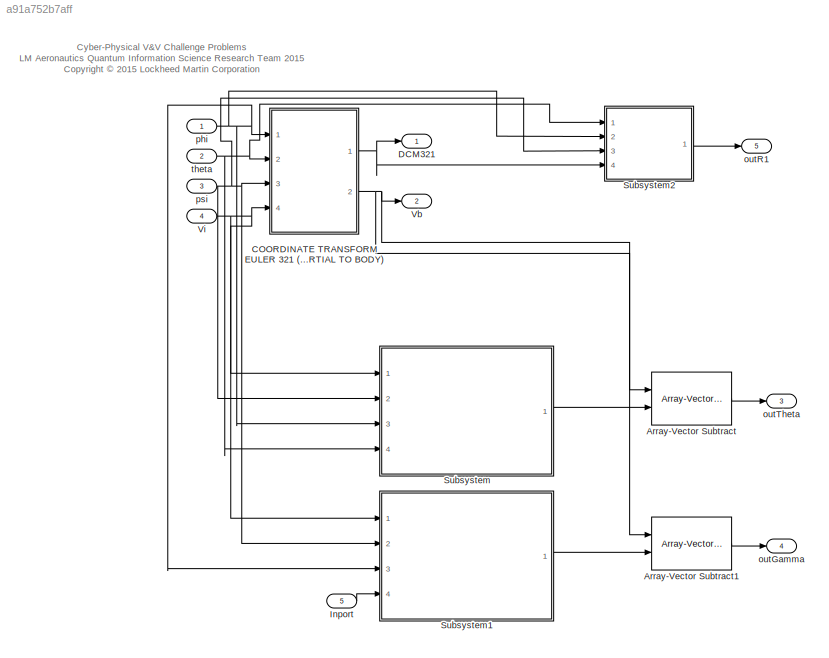
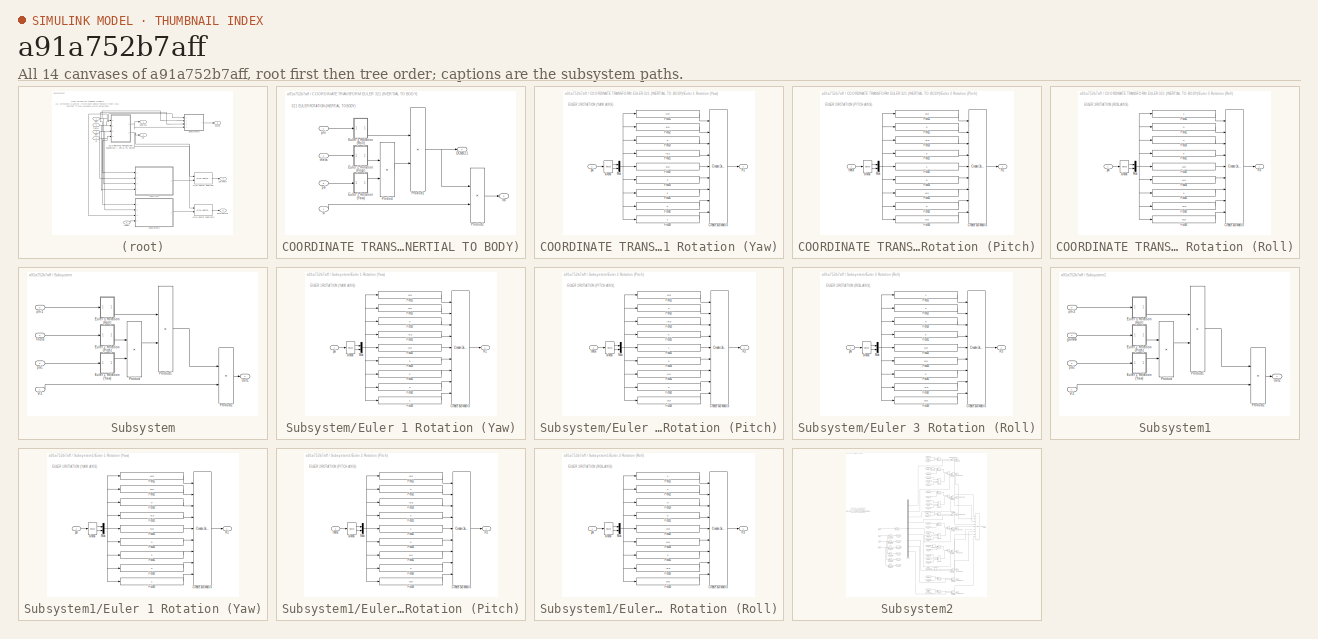
[diagram: thumbnail index - all 14 canvases of the model, root first then tree order]
MODEL slx_a91a752b7aff
KIND model
CONFIG AbsTol = auto
CONFIG EnableMultiTasking = on
CONFIG FixedStep = 0.01
CONFIG MaxStep = auto
CONFIG MinStep = auto
CONFIG RelTol = 1e-3
CONFIG SampleTimeConstraint = Unconstrained
CONFIG SolverName = ode3
CONFIG StartTime = 0.0
CONFIG StopTime = 10.0
WORKSPACE source: mxarray member
WORKSPACE X = [2.82349418676 1.62907668459 2.19953938585 0.797466441882 0.483707410954 -2.31662366019 2.91825739244 3.13458055029 0.41915422695 -3.04934593888 -1.84933917806 2.61583239987 ... (7007 elements, 1x7007)]
WORKSPACE cs: handle (value not decoded)
WORKSPACE curPath = '<userpath>/Documents/Projects/QRA-LocalSearch/Local Search Algorithms/Problems'
WORKSPACE d = 4004
WORKSPACE hws = []
WORKSPACE i = 6
WORKSPACE model_cs: handle (value not decoded)
WORKSPACE modelpath = '<userpath>/Documents/Projects/QRA-LocalSearch/Simulink Models/9_euler/'
WORKSPACE req = 'R1'
WORKSPACE t = [0 0.01 0.02 0.03 0.04 0.05 0.06 0.07 0.08 0.09 0.1 0.11 ... (1001 elements, 1x1001)]
WORKSPACE var: object (value not decoded)
BLOCK [Reference] Array-Vector Subtract  REF=dspmtrx3/Array-Vector
Subtract
  Ports = [2, 1]
  SourceBlock = dspmtrx3/Array-Vector\nSubtract
  SourceProductBaseCode = DS
  SourceType = Array-Vector Subtract
BLOCK [Reference] Array-Vector Subtract1  REF=dspmtrx3/Array-Vector
Subtract
  Ports = [2, 1]
  SourceBlock = dspmtrx3/Array-Vector\nSubtract
  SourceProductBaseCode = DS
  SourceType = Array-Vector Subtract
BLOCK [SubSystem] COORDINATE TRANSFORM EULER 321 (INERTIAL TO BODY)
  Ports = [4, 2]
  RequestExecContextInheritance = off
BLOCK [Outport] COORDINATE TRANSFORM EULER 321 (INERTIAL TO BODY)/DCM321
  VectorParamsAs1DForOutWhenUnconnected = off
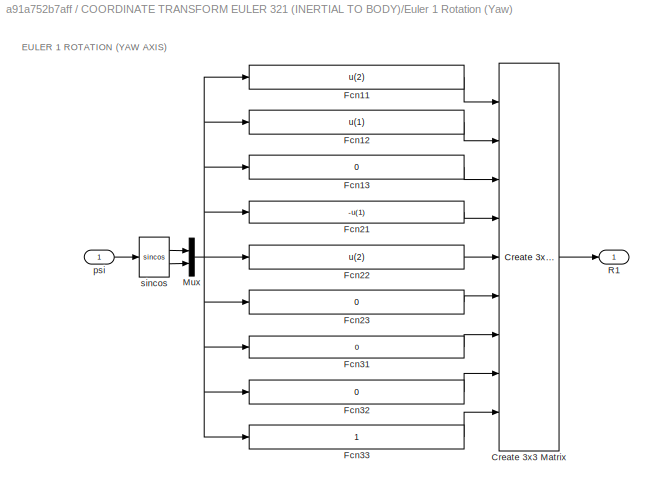
BLOCK [SubSystem] COORDINATE TRANSFORM EULER 321 (INERTIAL TO BODY)/Euler 1 Rotation (Yaw)
  Ports = [1, 1]
  RequestExecContextInheritance = off
BLOCK [Reference] COORDINATE TRANSFORM EULER 321 (INERTIAL TO BODY)/Euler 1 Rotation (Yaw)/Create 3x3 Matrix  REF=sharedutil/Create 3x3 Matrix
  Ports = [9, 1]
  SourceBlock = sharedutil/Create 3x3 Matrix
  SourceProductBaseCode = AE,PW,DR,MT,UV,VE
  SourceType = Create 3x3 Matrix
BLOCK [Fcn] COORDINATE TRANSFORM EULER 321 (INERTIAL TO BODY)/Euler 1 Rotation (Yaw)/Fcn11
  Expr = u(2)
BLOCK [Fcn] COORDINATE TRANSFORM EULER 321 (INERTIAL TO BODY)/Euler 1 Rotation (Yaw)/Fcn12
  Expr = u(1)
BLOCK [Fcn] COORDINATE TRANSFORM EULER 321 (INERTIAL TO BODY)/Euler 1 Rotation (Yaw)/Fcn13
  Expr = 0
BLOCK [Fcn] COORDINATE TRANSFORM EULER 321 (INERTIAL TO BODY)/Euler 1 Rotation (Yaw)/Fcn21
  Expr = -u(1)
BLOCK [Fcn] COORDINATE TRANSFORM EULER 321 (INERTIAL TO BODY)/Euler 1 Rotation (Yaw)/Fcn22
  Expr = u(2)
BLOCK [Fcn] COORDINATE TRANSFORM EULER 321 (INERTIAL TO BODY)/Euler 1 Rotation (Yaw)/Fcn23
  Expr = 0
BLOCK [Fcn] COORDINATE TRANSFORM EULER 321 (INERTIAL TO BODY)/Euler 1 Rotation (Yaw)/Fcn31
  Expr = 0
BLOCK [Fcn] COORDINATE TRANSFORM EULER 321 (INERTIAL TO BODY)/Euler 1 Rotation (Yaw)/Fcn32
  Expr = 0
BLOCK [Fcn] COORDINATE TRANSFORM EULER 321 (INERTIAL TO BODY)/Euler 1 Rotation (Yaw)/Fcn33
  Expr = 1
BLOCK [Mux] COORDINATE TRANSFORM EULER 321 (INERTIAL TO BODY)/Euler 1 Rotation (Yaw)/Mux
  DisplayOption = bar
  Inputs = 2
  Ports = [2, 1]
BLOCK [Outport] COORDINATE TRANSFORM EULER 321 (INERTIAL TO BODY)/Euler 1 Rotation (Yaw)/R1
  PortDimensions = [3,3]
  VectorParamsAs1DForOutWhenUnconnected = off
BLOCK [Inport] COORDINATE TRANSFORM EULER 321 (INERTIAL TO BODY)/Euler 1 Rotation (Yaw)/psi
BLOCK [Trigonometry] COORDINATE TRANSFORM EULER 321 (INERTIAL TO BODY)/Euler 1 Rotation (Yaw)/sincos
  Operator = sincos
  Ports = [1, 2]
BLOCK [SubSystem] COORDINATE TRANSFORM EULER 321 (INERTIAL TO BODY)/Euler 2 Rotation (Pitch)
  Ports = [1, 1]
  RequestExecContextInheritance = off
BLOCK [Reference] COORDINATE TRANSFORM EULER 321 (INERTIAL TO BODY)/Euler 2 Rotation (Pitch)/Create 3x3 Matrix  REF=sharedutil/Create 3x3 Matrix
  Ports = [9, 1]
  SourceBlock = sharedutil/Create 3x3 Matrix
  SourceProductBaseCode = AE,PW,DR,MT,UV,VE
  SourceType = Create 3x3 Matrix
BLOCK [Fcn] COORDINATE TRANSFORM EULER 321 (INERTIAL TO BODY)/Euler 2 Rotation (Pitch)/Fcn11
  Expr = u(2)
BLOCK [Fcn] COORDINATE TRANSFORM EULER 321 (INERTIAL TO BODY)/Euler 2 Rotation (Pitch)/Fcn12
  Expr = 0
BLOCK [Fcn] COORDINATE TRANSFORM EULER 321 (INERTIAL TO BODY)/Euler 2 Rotation (Pitch)/Fcn13
  Expr = -u(1)
BLOCK [Fcn] COORDINATE TRANSFORM EULER 321 (INERTIAL TO BODY)/Euler 2 Rotation (Pitch)/Fcn21
  Expr = 0
BLOCK [Fcn] COORDINATE TRANSFORM EULER 321 (INERTIAL TO BODY)/Euler 2 Rotation (Pitch)/Fcn22
  Expr = 1
BLOCK [Fcn] COORDINATE TRANSFORM EULER 321 (INERTIAL TO BODY)/Euler 2 Rotation (Pitch)/Fcn23
  Expr = 0
BLOCK [Fcn] COORDINATE TRANSFORM EULER 321 (INERTIAL TO BODY)/Euler 2 Rotation (Pitch)/Fcn31
  Expr = u(1)
BLOCK [Fcn] COORDINATE TRANSFORM EULER 321 (INERTIAL TO BODY)/Euler 2 Rotation (Pitch)/Fcn32
  Expr = 0
BLOCK [Fcn] COORDINATE TRANSFORM EULER 321 (INERTIAL TO BODY)/Euler 2 Rotation (Pitch)/Fcn33
  Expr = u(2)
BLOCK [Mux] COORDINATE TRANSFORM EULER 321 (INERTIAL TO BODY)/Euler 2 Rotation (Pitch)/Mux
  DisplayOption = bar
  Inputs = 2
  Ports = [2, 1]
BLOCK [Outport] COORDINATE TRANSFORM EULER 321 (INERTIAL TO BODY)/Euler 2 Rotation (Pitch)/R2
  PortDimensions = [3,3]
  VectorParamsAs1DForOutWhenUnconnected = off
BLOCK [Trigonometry] COORDINATE TRANSFORM EULER 321 (INERTIAL TO BODY)/Euler 2 Rotation (Pitch)/sincos
  Operator = sincos
  Ports = [1, 2]
BLOCK [Inport] COORDINATE TRANSFORM EULER 321 (INERTIAL TO BODY)/Euler 2 Rotation (Pitch)/theta
BLOCK [SubSystem] COORDINATE TRANSFORM EULER 321 (INERTIAL TO BODY)/Euler 3 Rotation (Roll)
  Ports = [1, 1]
  RequestExecContextInheritance = off
BLOCK [Reference] COORDINATE TRANSFORM EULER 321 (INERTIAL TO BODY)/Euler 3 Rotation (Roll)/Create 3x3 Matrix  REF=sharedutil/Create 3x3 Matrix
  Ports = [9, 1]
  SourceBlock = sharedutil/Create 3x3 Matrix
  SourceProductBaseCode = AE,PW,DR,MT,UV,VE
  SourceType = Create 3x3 Matrix
BLOCK [Fcn] COORDINATE TRANSFORM EULER 321 (INERTIAL TO BODY)/Euler 3 Rotation (Roll)/Fcn11
  Expr = 1
BLOCK [Fcn] COORDINATE TRANSFORM EULER 321 (INERTIAL TO BODY)/Euler 3 Rotation (Roll)/Fcn12
  Expr = 0
BLOCK [Fcn] COORDINATE TRANSFORM EULER 321 (INERTIAL TO BODY)/Euler 3 Rotation (Roll)/Fcn13
  Expr = 0
BLOCK [Fcn] COORDINATE TRANSFORM EULER 321 (INERTIAL TO BODY)/Euler 3 Rotation (Roll)/Fcn21
  Expr = 0
BLOCK [Fcn] COORDINATE TRANSFORM EULER 321 (INERTIAL TO BODY)/Euler 3 Rotation (Roll)/Fcn22
  Expr = u(2)
BLOCK [Fcn] COORDINATE TRANSFORM EULER 321 (INERTIAL TO BODY)/Euler 3 Rotation (Roll)/Fcn23
  Expr = u(1)
BLOCK [Fcn] COORDINATE TRANSFORM EULER 321 (INERTIAL TO BODY)/Euler 3 Rotation (Roll)/Fcn31
  Expr = 0
BLOCK [Fcn] COORDINATE TRANSFORM EULER 321 (INERTIAL TO BODY)/Euler 3 Rotation (Roll)/Fcn32
  Expr = -u(1)
BLOCK [Fcn] COORDINATE TRANSFORM EULER 321 (INERTIAL TO BODY)/Euler 3 Rotation (Roll)/Fcn33
  Expr = u(2)
BLOCK [Mux] COORDINATE TRANSFORM EULER 321 (INERTIAL TO BODY)/Euler 3 Rotation (Roll)/Mux
  DisplayOption = bar
  Inputs = 2
  Ports = [2, 1]
BLOCK [Outport] COORDINATE TRANSFORM EULER 321 (INERTIAL TO BODY)/Euler 3 Rotation (Roll)/R3
  PortDimensions = [3,3]
  VectorParamsAs1DForOutWhenUnconnected = off
BLOCK [Inport] COORDINATE TRANSFORM EULER 321 (INERTIAL TO BODY)/Euler 3 Rotation (Roll)/phi
BLOCK [Trigonometry] COORDINATE TRANSFORM EULER 321 (INERTIAL TO BODY)/Euler 3 Rotation (Roll)/sincos
  Operator = sincos
  Ports = [1, 2]
BLOCK [Product] COORDINATE TRANSFORM EULER 321 (INERTIAL TO BODY)/Product
  Multiplication = Matrix(*)
  Ports = [2, 1]
  RndMeth = Zero
BLOCK [Product] COORDINATE TRANSFORM EULER 321 (INERTIAL TO BODY)/Product1
  Multiplication = Matrix(*)
  Ports = [2, 1]
  RndMeth = Zero
BLOCK [Product] COORDINATE TRANSFORM EULER 321 (INERTIAL TO BODY)/Product2
  Multiplication = Matrix(*)
  Ports = [2, 1]
  RndMeth = Zero
BLOCK [Outport] COORDINATE TRANSFORM EULER 321 (INERTIAL TO BODY)/Vb
  Port = 2
  VectorParamsAs1DForOutWhenUnconnected = off
BLOCK [Inport] COORDINATE TRANSFORM EULER 321 (INERTIAL TO BODY)/Vi
  Port = 4
BLOCK [Inport] COORDINATE TRANSFORM EULER 321 (INERTIAL TO BODY)/phi
BLOCK [Inport] COORDINATE TRANSFORM EULER 321 (INERTIAL TO BODY)/psi
  Port = 3
BLOCK [Inport] COORDINATE TRANSFORM EULER 321 (INERTIAL TO BODY)/theta
  Port = 2
BLOCK [Outport] DCM321
  VectorParamsAs1DForOutWhenUnconnected = off
BLOCK [Inport] Inport
  Port = 5
BLOCK [SubSystem] Subsystem
  Ports = [4, 1]
  RequestExecContextInheritance = off
BLOCK [SubSystem] Subsystem/Euler 1 Rotation (Yaw)
  Ports = [1, 1]
  RequestExecContextInheritance = off
BLOCK [Reference] Subsystem/Euler 1 Rotation (Yaw)/Create 3x3 Matrix  REF=sharedutil/Create 3x3 Matrix
  Ports = [9, 1]
  SourceBlock = sharedutil/Create 3x3 Matrix
  SourceProductBaseCode = AE,PW,DR,MT,UV,VE
  SourceType = Create 3x3 Matrix
BLOCK [Fcn] Subsystem/Euler 1 Rotation (Yaw)/Fcn11
  Expr = u(2)
BLOCK [Fcn] Subsystem/Euler 1 Rotation (Yaw)/Fcn12
  Expr = u(1)
BLOCK [Fcn] Subsystem/Euler 1 Rotation (Yaw)/Fcn13
  Expr = 0
BLOCK [Fcn] Subsystem/Euler 1 Rotation (Yaw)/Fcn21
  Expr = -u(1)
BLOCK [Fcn] Subsystem/Euler 1 Rotation (Yaw)/Fcn22
  Expr = u(2)
BLOCK [Fcn] Subsystem/Euler 1 Rotation (Yaw)/Fcn23
  Expr = 0
BLOCK [Fcn] Subsystem/Euler 1 Rotation (Yaw)/Fcn31
  Expr = 0
BLOCK [Fcn] Subsystem/Euler 1 Rotation (Yaw)/Fcn32
  Expr = 0
BLOCK [Fcn] Subsystem/Euler 1 Rotation (Yaw)/Fcn33
  Expr = 1
BLOCK [Mux] Subsystem/Euler 1 Rotation (Yaw)/Mux
  DisplayOption = bar
  Inputs = 2
  Ports = [2, 1]
BLOCK [Outport] Subsystem/Euler 1 Rotation (Yaw)/R1
  PortDimensions = [3,3]
  VectorParamsAs1DForOutWhenUnconnected = off
BLOCK [Inport] Subsystem/Euler 1 Rotation (Yaw)/psi
BLOCK [Trigonometry] Subsystem/Euler 1 Rotation (Yaw)/sincos
  Operator = sincos
  Ports = [1, 2]
BLOCK [SubSystem] Subsystem/Euler 2 Rotation (Pitch)
  Ports = [1, 1]
  RequestExecContextInheritance = off
BLOCK [Reference] Subsystem/Euler 2 Rotation (Pitch)/Create 3x3 Matrix  REF=sharedutil/Create 3x3 Matrix
  Ports = [9, 1]
  SourceBlock = sharedutil/Create 3x3 Matrix
  SourceProductBaseCode = AE,PW,DR,MT,UV,VE
  SourceType = Create 3x3 Matrix
BLOCK [Fcn] Subsystem/Euler 2 Rotation (Pitch)/Fcn11
  Expr = u(2)
BLOCK [Fcn] Subsystem/Euler 2 Rotation (Pitch)/Fcn12
  Expr = 0
BLOCK [Fcn] Subsystem/Euler 2 Rotation (Pitch)/Fcn13
  Expr = -u(1)
BLOCK [Fcn] Subsystem/Euler 2 Rotation (Pitch)/Fcn21
  Expr = 0
BLOCK [Fcn] Subsystem/Euler 2 Rotation (Pitch)/Fcn22
  Expr = 1
BLOCK [Fcn] Subsystem/Euler 2 Rotation (Pitch)/Fcn23
  Expr = 0
BLOCK [Fcn] Subsystem/Euler 2 Rotation (Pitch)/Fcn31
  Expr = u(1)
BLOCK [Fcn] Subsystem/Euler 2 Rotation (Pitch)/Fcn32
  Expr = 0
BLOCK [Fcn] Subsystem/Euler 2 Rotation (Pitch)/Fcn33
  Expr = u(2)
BLOCK [Mux] Subsystem/Euler 2 Rotation (Pitch)/Mux
  DisplayOption = bar
  Inputs = 2
  Ports = [2, 1]
BLOCK [Outport] Subsystem/Euler 2 Rotation (Pitch)/R2
  PortDimensions = [3,3]
  VectorParamsAs1DForOutWhenUnconnected = off
BLOCK [Trigonometry] Subsystem/Euler 2 Rotation (Pitch)/sincos
  Operator = sincos
  Ports = [1, 2]
BLOCK [Inport] Subsystem/Euler 2 Rotation (Pitch)/theta
BLOCK [SubSystem] Subsystem/Euler 3 Rotation (Roll)
  Ports = [1, 1]
  RequestExecContextInheritance = off
BLOCK [Reference] Subsystem/Euler 3 Rotation (Roll)/Create 3x3 Matrix  REF=sharedutil/Create 3x3 Matrix
  Ports = [9, 1]
  SourceBlock = sharedutil/Create 3x3 Matrix
  SourceProductBaseCode = AE,PW,DR,MT,UV,VE
  SourceType = Create 3x3 Matrix
BLOCK [Fcn] Subsystem/Euler 3 Rotation (Roll)/Fcn11
  Expr = 1
BLOCK [Fcn] Subsystem/Euler 3 Rotation (Roll)/Fcn12
  Expr = 0
BLOCK [Fcn] Subsystem/Euler 3 Rotation (Roll)/Fcn13
  Expr = 0
BLOCK [Fcn] Subsystem/Euler 3 Rotation (Roll)/Fcn21
  Expr = 0
BLOCK [Fcn] Subsystem/Euler 3 Rotation (Roll)/Fcn22
  Expr = u(2)
BLOCK [Fcn] Subsystem/Euler 3 Rotation (Roll)/Fcn23
  Expr = u(1)
BLOCK [Fcn] Subsystem/Euler 3 Rotation (Roll)/Fcn31
  Expr = 0
BLOCK [Fcn] Subsystem/Euler 3 Rotation (Roll)/Fcn32
  Expr = -u(1)
BLOCK [Fcn] Subsystem/Euler 3 Rotation (Roll)/Fcn33
  Expr = u(2)
BLOCK [Mux] Subsystem/Euler 3 Rotation (Roll)/Mux
  DisplayOption = bar
  Inputs = 2
  Ports = [2, 1]
BLOCK [Outport] Subsystem/Euler 3 Rotation (Roll)/R3
  PortDimensions = [3,3]
  VectorParamsAs1DForOutWhenUnconnected = off
BLOCK [Inport] Subsystem/Euler 3 Rotation (Roll)/phi
BLOCK [Trigonometry] Subsystem/Euler 3 Rotation (Roll)/sincos
  Operator = sincos
  Ports = [1, 2]
BLOCK [Outport] Subsystem/Out1
  VectorParamsAs1DForOutWhenUnconnected = off
BLOCK [Product] Subsystem/Product
  Multiplication = Matrix(*)
  Ports = [2, 1]
  RndMeth = Zero
BLOCK [Product] Subsystem/Product1
  Multiplication = Matrix(*)
  Ports = [2, 1]
  RndMeth = Zero
BLOCK [Product] Subsystem/Product2
  Multiplication = Matrix(*)
  Ports = [2, 1]
  RndMeth = Zero
BLOCK [Inport] Subsystem/Theta
  Port = 4
BLOCK [Inport] Subsystem/Vi1
BLOCK [Inport] Subsystem/phi1
  Port = 3
BLOCK [Inport] Subsystem/psi1
  Port = 2
BLOCK [SubSystem] Subsystem1
  Ports = [4, 1]
  RequestExecContextInheritance = off
BLOCK [SubSystem] Subsystem1/Euler 1 Rotation (Yaw)
  Ports = [1, 1]
  RequestExecContextInheritance = off
BLOCK [Reference] Subsystem1/Euler 1 Rotation (Yaw)/Create 3x3 Matrix  REF=sharedutil/Create 3x3 Matrix
  Ports = [9, 1]
  SourceBlock = sharedutil/Create 3x3 Matrix
  SourceProductBaseCode = AE,PW,DR,MT,UV,VE
  SourceType = Create 3x3 Matrix
BLOCK [Fcn] Subsystem1/Euler 1 Rotation (Yaw)/Fcn11
  Expr = u(2)
BLOCK [Fcn] Subsystem1/Euler 1 Rotation (Yaw)/Fcn12
  Expr = u(1)
BLOCK [Fcn] Subsystem1/Euler 1 Rotation (Yaw)/Fcn13
  Expr = 0
BLOCK [Fcn] Subsystem1/Euler 1 Rotation (Yaw)/Fcn21
  Expr = -u(1)
BLOCK [Fcn] Subsystem1/Euler 1 Rotation (Yaw)/Fcn22
  Expr = u(2)
BLOCK [Fcn] Subsystem1/Euler 1 Rotation (Yaw)/Fcn23
  Expr = 0
BLOCK [Fcn] Subsystem1/Euler 1 Rotation (Yaw)/Fcn31
  Expr = 0
BLOCK [Fcn] Subsystem1/Euler 1 Rotation (Yaw)/Fcn32
  Expr = 0
BLOCK [Fcn] Subsystem1/Euler 1 Rotation (Yaw)/Fcn33
  Expr = 1
BLOCK [Mux] Subsystem1/Euler 1 Rotation (Yaw)/Mux
  DisplayOption = bar
  Inputs = 2
  Ports = [2, 1]
BLOCK [Outport] Subsystem1/Euler 1 Rotation (Yaw)/R1
  PortDimensions = [3,3]
  VectorParamsAs1DForOutWhenUnconnected = off
BLOCK [Inport] Subsystem1/Euler 1 Rotation (Yaw)/psi
BLOCK [Trigonometry] Subsystem1/Euler 1 Rotation (Yaw)/sincos
  Operator = sincos
  Ports = [1, 2]
BLOCK [SubSystem] Subsystem1/Euler 2 Rotation (Pitch)
  Ports = [1, 1]
  RequestExecContextInheritance = off
BLOCK [Reference] Subsystem1/Euler 2 Rotation (Pitch)/Create 3x3 Matrix  REF=sharedutil/Create 3x3 Matrix
  Ports = [9, 1]
  SourceBlock = sharedutil/Create 3x3 Matrix
  SourceProductBaseCode = AE,PW,DR,MT,UV,VE
  SourceType = Create 3x3 Matrix
BLOCK [Fcn] Subsystem1/Euler 2 Rotation (Pitch)/Fcn11
  Expr = u(2)
BLOCK [Fcn] Subsystem1/Euler 2 Rotation (Pitch)/Fcn12
  Expr = 0
BLOCK [Fcn] Subsystem1/Euler 2 Rotation (Pitch)/Fcn13
  Expr = -u(1)
BLOCK [Fcn] Subsystem1/Euler 2 Rotation (Pitch)/Fcn21
  Expr = 0
BLOCK [Fcn] Subsystem1/Euler 2 Rotation (Pitch)/Fcn22
  Expr = 1
BLOCK [Fcn] Subsystem1/Euler 2 Rotation (Pitch)/Fcn23
  Expr = 0
BLOCK [Fcn] Subsystem1/Euler 2 Rotation (Pitch)/Fcn31
  Expr = u(1)
BLOCK [Fcn] Subsystem1/Euler 2 Rotation (Pitch)/Fcn32
  Expr = 0
BLOCK [Fcn] Subsystem1/Euler 2 Rotation (Pitch)/Fcn33
  Expr = u(2)
BLOCK [Mux] Subsystem1/Euler 2 Rotation (Pitch)/Mux
  DisplayOption = bar
  Inputs = 2
  Ports = [2, 1]
BLOCK [Outport] Subsystem1/Euler 2 Rotation (Pitch)/R2
  PortDimensions = [3,3]
  VectorParamsAs1DForOutWhenUnconnected = off
BLOCK [Trigonometry] Subsystem1/Euler 2 Rotation (Pitch)/sincos
  Operator = sincos
  Ports = [1, 2]
BLOCK [Inport] Subsystem1/Euler 2 Rotation (Pitch)/theta
BLOCK [SubSystem] Subsystem1/Euler 3 Rotation (Roll)
  Ports = [1, 1]
  RequestExecContextInheritance = off
BLOCK [Reference] Subsystem1/Euler 3 Rotation (Roll)/Create 3x3 Matrix  REF=sharedutil/Create 3x3 Matrix
  Ports = [9, 1]
  SourceBlock = sharedutil/Create 3x3 Matrix
  SourceProductBaseCode = AE,PW,DR,MT,UV,VE
  SourceType = Create 3x3 Matrix
BLOCK [Fcn] Subsystem1/Euler 3 Rotation (Roll)/Fcn11
  Expr = 1
BLOCK [Fcn] Subsystem1/Euler 3 Rotation (Roll)/Fcn12
  Expr = 0
BLOCK [Fcn] Subsystem1/Euler 3 Rotation (Roll)/Fcn13
  Expr = 0
BLOCK [Fcn] Subsystem1/Euler 3 Rotation (Roll)/Fcn21
  Expr = 0
BLOCK [Fcn] Subsystem1/Euler 3 Rotation (Roll)/Fcn22
  Expr = u(2)
BLOCK [Fcn] Subsystem1/Euler 3 Rotation (Roll)/Fcn23
  Expr = u(1)
BLOCK [Fcn] Subsystem1/Euler 3 Rotation (Roll)/Fcn31
  Expr = 0
BLOCK [Fcn] Subsystem1/Euler 3 Rotation (Roll)/Fcn32
  Expr = -u(1)
BLOCK [Fcn] Subsystem1/Euler 3 Rotation (Roll)/Fcn33
  Expr = u(2)
BLOCK [Mux] Subsystem1/Euler 3 Rotation (Roll)/Mux
  DisplayOption = bar
  Inputs = 2
  Ports = [2, 1]
BLOCK [Outport] Subsystem1/Euler 3 Rotation (Roll)/R3
  PortDimensions = [3,3]
  VectorParamsAs1DForOutWhenUnconnected = off
BLOCK [Inport] Subsystem1/Euler 3 Rotation (Roll)/phi
BLOCK [Trigonometry] Subsystem1/Euler 3 Rotation (Roll)/sincos
  Operator = sincos
  Ports = [1, 2]
BLOCK [Outport] Subsystem1/Out2
  VectorParamsAs1DForOutWhenUnconnected = off
BLOCK [Product] Subsystem1/Product
  Multiplication = Matrix(*)
  Ports = [2, 1]
  RndMeth = Zero
BLOCK [Product] Subsystem1/Product1
  Multiplication = Matrix(*)
  Ports = [2, 1]
  RndMeth = Zero
BLOCK [Product] Subsystem1/Product2
  Multiplication = Matrix(*)
  Ports = [2, 1]
  RndMeth = Zero
BLOCK [Inport] Subsystem1/Vi2
BLOCK [Inport] Subsystem1/gamma
  Port = 4
BLOCK [Inport] Subsystem1/phi2
  Port = 3
BLOCK [Inport] Subsystem1/psi2
  Port = 2
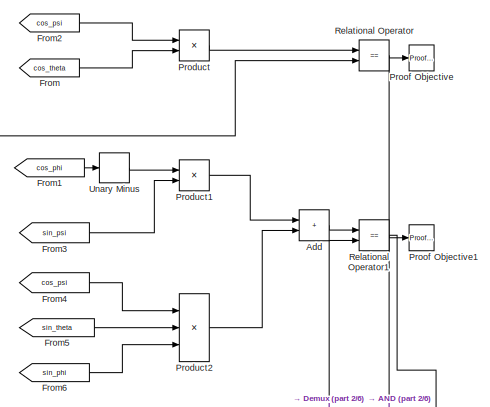
[diagram: Subsystem2 - part 1/6, top right region]
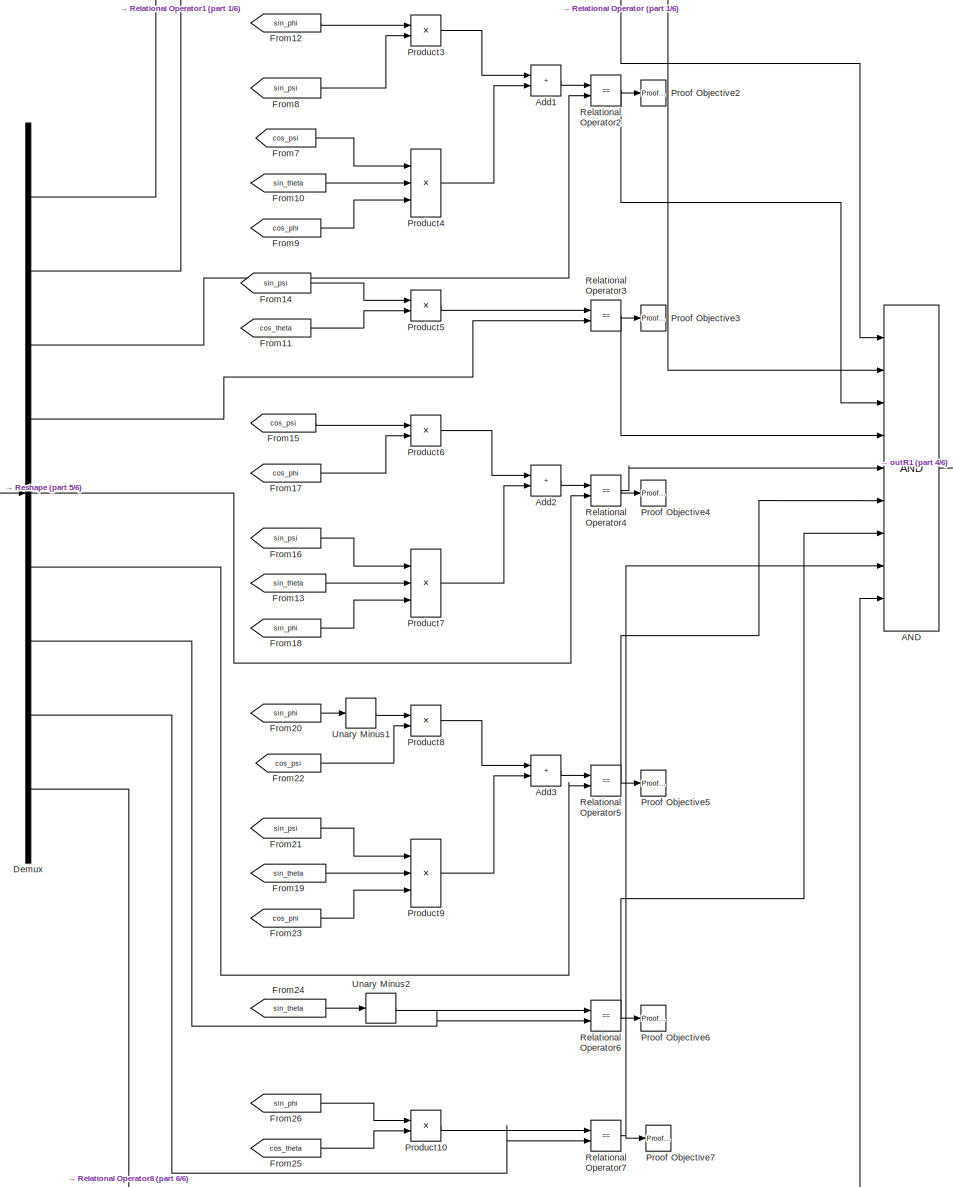
[diagram: Subsystem2 - part 2/6, middle right region]
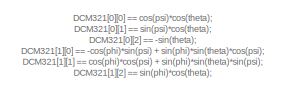
[diagram: Subsystem2 - part 3/6, middle left region]
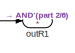
[diagram: Subsystem2 - part 4/6, middle right region]
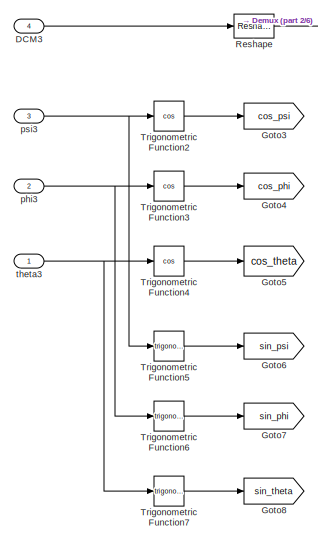
[diagram: Subsystem2 - part 5/6, middle left region]
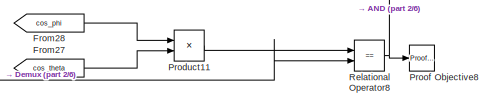
[diagram: Subsystem2 - part 6/6, bottom right region]
BLOCK [SubSystem] Subsystem2
  Ports = [4, 1]
  RequestExecContextInheritance = off
BLOCK [Logic] Subsystem2/AND
  AllPortsSameDT = off
  IconShape = distinctive
  Inputs = 9
  OutDataTypeStr = boolean
  Ports = [9, 1]
BLOCK [Sum] Subsystem2/Add
  IconShape = rectangular
  Ports = [2, 1]
BLOCK [Sum] Subsystem2/Add1
  IconShape = rectangular
  Ports = [2, 1]
BLOCK [Sum] Subsystem2/Add2
  IconShape = rectangular
  Ports = [2, 1]
BLOCK [Sum] Subsystem2/Add3
  IconShape = rectangular
  Ports = [2, 1]
BLOCK [Inport] Subsystem2/DCM3
  Port = 4
BLOCK [Demux] Subsystem2/Demux
  Outputs = 9
  Ports = [1, 9]
BLOCK [From] Subsystem2/From
  GotoTag = cos_theta
BLOCK [From] Subsystem2/From1
  GotoTag = cos_phi
BLOCK [From] Subsystem2/From10
  GotoTag = sin_theta
BLOCK [From] Subsystem2/From11
  GotoTag = cos_theta
BLOCK [From] Subsystem2/From12
  GotoTag = sin_phi
BLOCK [From] Subsystem2/From13
  GotoTag = sin_theta
BLOCK [From] Subsystem2/From14
  GotoTag = sin_psi
BLOCK [From] Subsystem2/From15
  GotoTag = cos_psi
BLOCK [From] Subsystem2/From16
  GotoTag = sin_psi
BLOCK [From] Subsystem2/From17
  GotoTag = cos_phi
BLOCK [From] Subsystem2/From18
  GotoTag = sin_phi
BLOCK [From] Subsystem2/From19
  GotoTag = sin_theta
BLOCK [From] Subsystem2/From2
  GotoTag = cos_psi
BLOCK [From] Subsystem2/From20
  GotoTag = sin_phi
BLOCK [From] Subsystem2/From21
  GotoTag = sin_psi
BLOCK [From] Subsystem2/From22
  GotoTag = cos_psi
BLOCK [From] Subsystem2/From23
  GotoTag = cos_phi
BLOCK [From] Subsystem2/From24
  GotoTag = sin_theta
BLOCK [From] Subsystem2/From25
  GotoTag = cos_theta
BLOCK [From] Subsystem2/From26
  GotoTag = sin_phi
BLOCK [From] Subsystem2/From27
  GotoTag = cos_theta
BLOCK [From] Subsystem2/From28
  GotoTag = cos_phi
BLOCK [From] Subsystem2/From3
  GotoTag = sin_psi
BLOCK [From] Subsystem2/From4
  GotoTag = cos_psi
BLOCK [From] Subsystem2/From5
  GotoTag = sin_theta
BLOCK [From] Subsystem2/From6
  GotoTag = sin_phi
BLOCK [From] Subsystem2/From7
  GotoTag = cos_psi
BLOCK [From] Subsystem2/From8
  GotoTag = sin_psi
BLOCK [From] Subsystem2/From9
  GotoTag = cos_phi
BLOCK [Goto] Subsystem2/Goto3
  GotoTag = cos_psi
BLOCK [Goto] Subsystem2/Goto4
  GotoTag = cos_phi
BLOCK [Goto] Subsystem2/Goto5
  GotoTag = cos_theta
BLOCK [Goto] Subsystem2/Goto6
  GotoTag = sin_psi
BLOCK [Goto] Subsystem2/Goto7
  GotoTag = sin_phi
BLOCK [Goto] Subsystem2/Goto8
  GotoTag = sin_theta
BLOCK [Product] Subsystem2/Product
  Ports = [2, 1]
BLOCK [Product] Subsystem2/Product1
  Ports = [2, 1]
BLOCK [Product] Subsystem2/Product10
  Ports = [2, 1]
BLOCK [Product] Subsystem2/Product11
  Ports = [2, 1]
BLOCK [Product] Subsystem2/Product2
  Inputs = 3
  Ports = [3, 1]
BLOCK [Product] Subsystem2/Product3
  Ports = [2, 1]
BLOCK [Product] Subsystem2/Product4
  Inputs = 3
  Ports = [3, 1]
BLOCK [Product] Subsystem2/Product5
  Ports = [2, 1]
BLOCK [Product] Subsystem2/Product6
  Ports = [2, 1]
BLOCK [Product] Subsystem2/Product7
  Inputs = 3
  Ports = [3, 1]
BLOCK [Product] Subsystem2/Product8
  Ports = [2, 1]
BLOCK [Product] Subsystem2/Product9
  Inputs = 3
  Ports = [3, 1]
BLOCK [Reference] Subsystem2/Proof Objective  REF=sldvlib/Objectives and Constraints/Proof Objective
  AttributesFormatString = %<intervals>
  NameLocation = top
  Ports = [1]
  SourceBlock = sldvlib/Objectives and Constraints/Proof Objective
  SourceProductBaseCode = SL
  SourceType = Design Verifier Proof Objective
BLOCK [Reference] Subsystem2/Proof Objective1  REF=sldvlib/Objectives and Constraints/Proof Objective
  AttributesFormatString = %<intervals>
  NameLocation = top
  Ports = [1]
  SourceBlock = sldvlib/Objectives and Constraints/Proof Objective
  SourceProductBaseCode = SL
  SourceType = Design Verifier Proof Objective
BLOCK [Reference] Subsystem2/Proof Objective2  REF=sldvlib/Objectives and Constraints/Proof Objective
  AttributesFormatString = %<intervals>
  NameLocation = top
  Ports = [1]
  SourceBlock = sldvlib/Objectives and Constraints/Proof Objective
  SourceProductBaseCode = SL
  SourceType = Design Verifier Proof Objective
BLOCK [Reference] Subsystem2/Proof Objective3  REF=sldvlib/Objectives and Constraints/Proof Objective
  AttributesFormatString = %<intervals>
  NameLocation = top
  Ports = [1]
  SourceBlock = sldvlib/Objectives and Constraints/Proof Objective
  SourceProductBaseCode = SL
  SourceType = Design Verifier Proof Objective
BLOCK [Reference] Subsystem2/Proof Objective4  REF=sldvlib/Objectives and Constraints/Proof Objective
  AttributesFormatString = %<intervals>
  NameLocation = top
  Ports = [1]
  SourceBlock = sldvlib/Objectives and Constraints/Proof Objective
  SourceProductBaseCode = SL
  SourceType = Design Verifier Proof Objective
BLOCK [Reference] Subsystem2/Proof Objective5  REF=sldvlib/Objectives and Constraints/Proof Objective
  AttributesFormatString = %<intervals>
  NameLocation = top
  Ports = [1]
  SourceBlock = sldvlib/Objectives and Constraints/Proof Objective
  SourceProductBaseCode = SL
  SourceType = Design Verifier Proof Objective
BLOCK [Reference] Subsystem2/Proof Objective6  REF=sldvlib/Objectives and Constraints/Proof Objective
  AttributesFormatString = %<intervals>
  NameLocation = top
  Ports = [1]
  SourceBlock = sldvlib/Objectives and Constraints/Proof Objective
  SourceProductBaseCode = SL
  SourceType = Design Verifier Proof Objective
BLOCK [Reference] Subsystem2/Proof Objective7  REF=sldvlib/Objectives and Constraints/Proof Objective
  AttributesFormatString = %<intervals>
  NameLocation = top
  Ports = [1]
  SourceBlock = sldvlib/Objectives and Constraints/Proof Objective
  SourceProductBaseCode = SL
  SourceType = Design Verifier Proof Objective
BLOCK [Reference] Subsystem2/Proof Objective8  REF=sldvlib/Objectives and Constraints/Proof Objective
  AttributesFormatString = %<intervals>
  NameLocation = top
  Ports = [1]
  SourceBlock = sldvlib/Objectives and Constraints/Proof Objective
  SourceProductBaseCode = SL
  SourceType = Design Verifier Proof Objective
BLOCK [RelationalOperator] Subsystem2/Relational Operator
  InputSameDT = off
  Operator = ==
  OutDataTypeStr = boolean
  Ports = [2, 1]
BLOCK [RelationalOperator] Subsystem2/Relational Operator1
  InputSameDT = off
  Operator = ==
  OutDataTypeStr = boolean
  Ports = [2, 1]
BLOCK [RelationalOperator] Subsystem2/Relational Operator2
  InputSameDT = off
  Operator = ==
  OutDataTypeStr = boolean
  Ports = [2, 1]
BLOCK [RelationalOperator] Subsystem2/Relational Operator3
  InputSameDT = off
  Operator = ==
  OutDataTypeStr = boolean
  Ports = [2, 1]
BLOCK [RelationalOperator] Subsystem2/Relational Operator4
  InputSameDT = off
  Operator = ==
  OutDataTypeStr = boolean
  Ports = [2, 1]
BLOCK [RelationalOperator] Subsystem2/Relational Operator5
  InputSameDT = off
  Operator = ==
  OutDataTypeStr = boolean
  Ports = [2, 1]
BLOCK [RelationalOperator] Subsystem2/Relational Operator6
  InputSameDT = off
  Operator = ==
  OutDataTypeStr = boolean
  Ports = [2, 1]
BLOCK [RelationalOperator] Subsystem2/Relational Operator7
  InputSameDT = off
  Operator = ==
  OutDataTypeStr = boolean
  Ports = [2, 1]
BLOCK [RelationalOperator] Subsystem2/Relational Operator8
  InputSameDT = off
  Operator = ==
  OutDataTypeStr = boolean
  Ports = [2, 1]
BLOCK [Reshape] Subsystem2/Reshape
  Ports = [1, 1]
BLOCK [Trigonometry] Subsystem2/Trigonometric Function2
  Operator = cos
  Ports = [1, 1]
BLOCK [Trigonometry] Subsystem2/Trigonometric Function3
  Operator = cos
  Ports = [1, 1]
BLOCK [Trigonometry] Subsystem2/Trigonometric Function4
  Operator = cos
  Ports = [1, 1]
BLOCK [Trigonometry] Subsystem2/Trigonometric Function5
  Ports = [1, 1]
BLOCK [Trigonometry] Subsystem2/Trigonometric Function6
  Ports = [1, 1]
BLOCK [Trigonometry] Subsystem2/Trigonometric Function7
  Ports = [1, 1]
BLOCK [UnaryMinus] Subsystem2/Unary Minus
BLOCK [UnaryMinus] Subsystem2/Unary Minus1
BLOCK [UnaryMinus] Subsystem2/Unary Minus2
BLOCK [Outport] Subsystem2/outR1
  VectorParamsAs1DForOutWhenUnconnected = off
BLOCK [Inport] Subsystem2/phi3
  Port = 2
BLOCK [Inport] Subsystem2/psi3
  Port = 3
BLOCK [Inport] Subsystem2/theta3
BLOCK [Outport] Vb
  Port = 2
  VectorParamsAs1DForOutWhenUnconnected = off
BLOCK [Inport] Vi
  OutDataTypeStr = double
  Port = 4
  PortDimensions = 3
BLOCK [Outport] outGamma
  Port = 4
  VectorParamsAs1DForOutWhenUnconnected = off
BLOCK [Outport] outR1
  Port = 5
  VectorParamsAs1DForOutWhenUnconnected = off
BLOCK [Outport] outTheta
  Port = 3
  VectorParamsAs1DForOutWhenUnconnected = off
BLOCK [Inport] phi
  OutDataTypeStr = double
BLOCK [Inport] psi
  OutDataTypeStr = double
  Port = 3
BLOCK [Inport] theta
  OutDataTypeStr = double
  Port = 2
ANNOTATION (root): Cyber-Physical V&V Challenge Problems LM Aeronautics Quantum Information Science Research Team 2015 <copyright redacted>
ANNOTATION COORDINATE TRANSFORM EULER 321 (INERTIAL TO BODY): 321 EULER ROTATION (INERTIAL TO BODY)
ANNOTATION COORDINATE TRANSFORM EULER 321 (INERTIAL TO BODY)/Euler 1 Rotation (Yaw): EULER 1 ROTATION (YAW AXIS)
ANNOTATION COORDINATE TRANSFORM EULER 321 (INERTIAL TO BODY)/Euler 2 Rotation (Pitch): EULER 2 ROTATION (PITCH AXIS)
ANNOTATION COORDINATE TRANSFORM EULER 321 (INERTIAL TO BODY)/Euler 3 Rotation (Roll): EULER 3 ROTATION (ROLL AXIS)
ANNOTATION Subsystem/Euler 1 Rotation (Yaw): EULER 1 ROTATION (YAW AXIS)
ANNOTATION Subsystem/Euler 2 Rotation (Pitch): EULER 2 ROTATION (PITCH AXIS)
ANNOTATION Subsystem/Euler 3 Rotation (Roll): EULER 3 ROTATION (ROLL AXIS)
ANNOTATION Subsystem1/Euler 1 Rotation (Yaw): EULER 1 ROTATION (YAW AXIS)
ANNOTATION Subsystem1/Euler 2 Rotation (Pitch): EULER 2 ROTATION (PITCH AXIS)
ANNOTATION Subsystem1/Euler 3 Rotation (Roll): EULER 3 ROTATION (ROLL AXIS)
ANNOTATION Subsystem2: DCM321[0][0] == cos(psi)*cos(theta); DCM321[0][1] == sin(psi)*cos(theta); DCM321[0][2] == -sin(theta); DCM321[1][0] == -cos(phi)*sin(psi) + sin(phi)*sin(theta)*cos(psi); DCM321[1][1] == cos(phi)*cos(psi) + sin(phi)*sin(theta)*sin(psi); DCM321[1][2] == sin(phi)*cos(theta); DCM321[2][0] == sin(phi)*sin(psi) + cos(phi)*sin(theta)*cos(psi); DCM321[2][1] == -sin(phi)*cos(psi) + cos(phi)*sin(theta)*sin(...<+42ch>
LINE Array-Vector Subtract1:1 -> outGamma:1
LINE Array-Vector Subtract:1 -> outTheta:1
LINE COORDINATE TRANSFORM EULER 321 (INERTIAL TO BODY)/Euler 1 Rotation (Yaw)/Create 3x3 Matrix:1 -> COORDINATE TRANSFORM EULER 321 (INERTIAL TO BODY)/Euler 1 Rotation (Yaw)/R1:1
LINE COORDINATE TRANSFORM EULER 321 (INERTIAL TO BODY)/Euler 1 Rotation (Yaw)/Fcn11:1 -> COORDINATE TRANSFORM EULER 321 (INERTIAL TO BODY)/Euler 1 Rotation (Yaw)/Create 3x3 Matrix:1
LINE COORDINATE TRANSFORM EULER 321 (INERTIAL TO BODY)/Euler 1 Rotation (Yaw)/Fcn12:1 -> COORDINATE TRANSFORM EULER 321 (INERTIAL TO BODY)/Euler 1 Rotation (Yaw)/Create 3x3 Matrix:2
LINE COORDINATE TRANSFORM EULER 321 (INERTIAL TO BODY)/Euler 1 Rotation (Yaw)/Fcn13:1 -> COORDINATE TRANSFORM EULER 321 (INERTIAL TO BODY)/Euler 1 Rotation (Yaw)/Create 3x3 Matrix:3
LINE COORDINATE TRANSFORM EULER 321 (INERTIAL TO BODY)/Euler 1 Rotation (Yaw)/Fcn21:1 -> COORDINATE TRANSFORM EULER 321 (INERTIAL TO BODY)/Euler 1 Rotation (Yaw)/Create 3x3 Matrix:4
LINE COORDINATE TRANSFORM EULER 321 (INERTIAL TO BODY)/Euler 1 Rotation (Yaw)/Fcn22:1 -> COORDINATE TRANSFORM EULER 321 (INERTIAL TO BODY)/Euler 1 Rotation (Yaw)/Create 3x3 Matrix:5
LINE COORDINATE TRANSFORM EULER 321 (INERTIAL TO BODY)/Euler 1 Rotation (Yaw)/Fcn23:1 -> COORDINATE TRANSFORM EULER 321 (INERTIAL TO BODY)/Euler 1 Rotation (Yaw)/Create 3x3 Matrix:6
LINE COORDINATE TRANSFORM EULER 321 (INERTIAL TO BODY)/Euler 1 Rotation (Yaw)/Fcn31:1 -> COORDINATE TRANSFORM EULER 321 (INERTIAL TO BODY)/Euler 1 Rotation (Yaw)/Create 3x3 Matrix:7
LINE COORDINATE TRANSFORM EULER 321 (INERTIAL TO BODY)/Euler 1 Rotation (Yaw)/Fcn32:1 -> COORDINATE TRANSFORM EULER 321 (INERTIAL TO BODY)/Euler 1 Rotation (Yaw)/Create 3x3 Matrix:8
LINE COORDINATE TRANSFORM EULER 321 (INERTIAL TO BODY)/Euler 1 Rotation (Yaw)/Fcn33:1 -> COORDINATE TRANSFORM EULER 321 (INERTIAL TO BODY)/Euler 1 Rotation (Yaw)/Create 3x3 Matrix:9
NET COORDINATE TRANSFORM EULER 321 (INERTIAL TO BODY)/Euler 1 Rotation (Yaw)/Mux:1 -> COORDINATE TRANSFORM EULER 321 (INERTIAL TO BODY)/Euler 1 Rotation (Yaw)/Fcn11:1, COORDINATE TRANSFORM EULER 321 (INERTIAL TO BODY)/Euler 1 Rotation (Yaw)/Fcn12:1, COORDINATE TRANSFORM EULER 321 (INERTIAL TO BODY)/Euler 1 Rotation (Yaw)/Fcn13:1, COORDINATE TRANSFORM EULER 321 (INERTIAL TO BODY)/Euler 1 Rotation (Yaw)/Fcn21:1, COORDINATE TRANSFORM EULER 321 (INERTIAL TO BODY)/Euler 1 Rotation (Yaw)/Fcn22:1, COORDINATE TRANSFORM EULER 321 (INERTIAL TO BODY)/Euler 1 Rotation (Yaw)/Fcn23:1, COORDINATE TRANSFORM EULER 321 (INERTIAL TO BODY)/Euler 1 Rotation (Yaw)/Fcn31:1, COORDINATE TRANSFORM EULER 321 (INERTIAL TO BODY)/Euler 1 Rotation (Yaw)/Fcn32:1, COORDINATE TRANSFORM EULER 321 (INERTIAL TO BODY)/Euler 1 Rotation (Yaw)/Fcn33:1
LINE COORDINATE TRANSFORM EULER 321 (INERTIAL TO BODY)/Euler 1 Rotation (Yaw)/psi:1 -> COORDINATE TRANSFORM EULER 321 (INERTIAL TO BODY)/Euler 1 Rotation (Yaw)/sincos:1
LINE COORDINATE TRANSFORM EULER 321 (INERTIAL TO BODY)/Euler 1 Rotation (Yaw)/sincos:1 -> COORDINATE TRANSFORM EULER 321 (INERTIAL TO BODY)/Euler 1 Rotation (Yaw)/Mux:1
LINE COORDINATE TRANSFORM EULER 321 (INERTIAL TO BODY)/Euler 1 Rotation (Yaw)/sincos:2 -> COORDINATE TRANSFORM EULER 321 (INERTIAL TO BODY)/Euler 1 Rotation (Yaw)/Mux:2
LINE COORDINATE TRANSFORM EULER 321 (INERTIAL TO BODY)/Euler 1 Rotation (Yaw):1 -> COORDINATE TRANSFORM EULER 321 (INERTIAL TO BODY)/Product:2
LINE COORDINATE TRANSFORM EULER 321 (INERTIAL TO BODY)/Euler 2 Rotation (Pitch)/Create 3x3 Matrix:1 -> COORDINATE TRANSFORM EULER 321 (INERTIAL TO BODY)/Euler 2 Rotation (Pitch)/R2:1
LINE COORDINATE TRANSFORM EULER 321 (INERTIAL TO BODY)/Euler 2 Rotation (Pitch)/Fcn11:1 -> COORDINATE TRANSFORM EULER 321 (INERTIAL TO BODY)/Euler 2 Rotation (Pitch)/Create 3x3 Matrix:1
LINE COORDINATE TRANSFORM EULER 321 (INERTIAL TO BODY)/Euler 2 Rotation (Pitch)/Fcn12:1 -> COORDINATE TRANSFORM EULER 321 (INERTIAL TO BODY)/Euler 2 Rotation (Pitch)/Create 3x3 Matrix:2
LINE COORDINATE TRANSFORM EULER 321 (INERTIAL TO BODY)/Euler 2 Rotation (Pitch)/Fcn13:1 -> COORDINATE TRANSFORM EULER 321 (INERTIAL TO BODY)/Euler 2 Rotation (Pitch)/Create 3x3 Matrix:3
LINE COORDINATE TRANSFORM EULER 321 (INERTIAL TO BODY)/Euler 2 Rotation (Pitch)/Fcn21:1 -> COORDINATE TRANSFORM EULER 321 (INERTIAL TO BODY)/Euler 2 Rotation (Pitch)/Create 3x3 Matrix:4
LINE COORDINATE TRANSFORM EULER 321 (INERTIAL TO BODY)/Euler 2 Rotation (Pitch)/Fcn22:1 -> COORDINATE TRANSFORM EULER 321 (INERTIAL TO BODY)/Euler 2 Rotation (Pitch)/Create 3x3 Matrix:5
LINE COORDINATE TRANSFORM EULER 321 (INERTIAL TO BODY)/Euler 2 Rotation (Pitch)/Fcn23:1 -> COORDINATE TRANSFORM EULER 321 (INERTIAL TO BODY)/Euler 2 Rotation (Pitch)/Create 3x3 Matrix:6
LINE COORDINATE TRANSFORM EULER 321 (INERTIAL TO BODY)/Euler 2 Rotation (Pitch)/Fcn31:1 -> COORDINATE TRANSFORM EULER 321 (INERTIAL TO BODY)/Euler 2 Rotation (Pitch)/Create 3x3 Matrix:7
LINE COORDINATE TRANSFORM EULER 321 (INERTIAL TO BODY)/Euler 2 Rotation (Pitch)/Fcn32:1 -> COORDINATE TRANSFORM EULER 321 (INERTIAL TO BODY)/Euler 2 Rotation (Pitch)/Create 3x3 Matrix:8
LINE COORDINATE TRANSFORM EULER 321 (INERTIAL TO BODY)/Euler 2 Rotation (Pitch)/Fcn33:1 -> COORDINATE TRANSFORM EULER 321 (INERTIAL TO BODY)/Euler 2 Rotation (Pitch)/Create 3x3 Matrix:9
NET COORDINATE TRANSFORM EULER 321 (INERTIAL TO BODY)/Euler 2 Rotation (Pitch)/Mux:1 -> COORDINATE TRANSFORM EULER 321 (INERTIAL TO BODY)/Euler 2 Rotation (Pitch)/Fcn11:1, COORDINATE TRANSFORM EULER 321 (INERTIAL TO BODY)/Euler 2 Rotation (Pitch)/Fcn12:1, COORDINATE TRANSFORM EULER 321 (INERTIAL TO BODY)/Euler 2 Rotation (Pitch)/Fcn13:1, COORDINATE TRANSFORM EULER 321 (INERTIAL TO BODY)/Euler 2 Rotation (Pitch)/Fcn21:1, COORDINATE TRANSFORM EULER 321 (INERTIAL TO BODY)/Euler 2 Rotation (Pitch)/Fcn22:1, COORDINATE TRANSFORM EULER 321 (INERTIAL TO BODY)/Euler 2 Rotation (Pitch)/Fcn23:1, COORDINATE TRANSFORM EULER 321 (INERTIAL TO BODY)/Euler 2 Rotation (Pitch)/Fcn31:1, COORDINATE TRANSFORM EULER 321 (INERTIAL TO BODY)/Euler 2 Rotation (Pitch)/Fcn32:1, COORDINATE TRANSFORM EULER 321 (INERTIAL TO BODY)/Euler 2 Rotation (Pitch)/Fcn33:1
LINE COORDINATE TRANSFORM EULER 321 (INERTIAL TO BODY)/Euler 2 Rotation (Pitch)/sincos:1 -> COORDINATE TRANSFORM EULER 321 (INERTIAL TO BODY)/Euler 2 Rotation (Pitch)/Mux:1
LINE COORDINATE TRANSFORM EULER 321 (INERTIAL TO BODY)/Euler 2 Rotation (Pitch)/sincos:2 -> COORDINATE TRANSFORM EULER 321 (INERTIAL TO BODY)/Euler 2 Rotation (Pitch)/Mux:2
LINE COORDINATE TRANSFORM EULER 321 (INERTIAL TO BODY)/Euler 2 Rotation (Pitch)/theta:1 -> COORDINATE TRANSFORM EULER 321 (INERTIAL TO BODY)/Euler 2 Rotation (Pitch)/sincos:1
LINE COORDINATE TRANSFORM EULER 321 (INERTIAL TO BODY)/Euler 2 Rotation (Pitch):1 -> COORDINATE TRANSFORM EULER 321 (INERTIAL TO BODY)/Product:1
LINE COORDINATE TRANSFORM EULER 321 (INERTIAL TO BODY)/Euler 3 Rotation (Roll)/Create 3x3 Matrix:1 -> COORDINATE TRANSFORM EULER 321 (INERTIAL TO BODY)/Euler 3 Rotation (Roll)/R3:1
LINE COORDINATE TRANSFORM EULER 321 (INERTIAL TO BODY)/Euler 3 Rotation (Roll)/Fcn11:1 -> COORDINATE TRANSFORM EULER 321 (INERTIAL TO BODY)/Euler 3 Rotation (Roll)/Create 3x3 Matrix:1
LINE COORDINATE TRANSFORM EULER 321 (INERTIAL TO BODY)/Euler 3 Rotation (Roll)/Fcn12:1 -> COORDINATE TRANSFORM EULER 321 (INERTIAL TO BODY)/Euler 3 Rotation (Roll)/Create 3x3 Matrix:2
LINE COORDINATE TRANSFORM EULER 321 (INERTIAL TO BODY)/Euler 3 Rotation (Roll)/Fcn13:1 -> COORDINATE TRANSFORM EULER 321 (INERTIAL TO BODY)/Euler 3 Rotation (Roll)/Create 3x3 Matrix:3
LINE COORDINATE TRANSFORM EULER 321 (INERTIAL TO BODY)/Euler 3 Rotation (Roll)/Fcn21:1 -> COORDINATE TRANSFORM EULER 321 (INERTIAL TO BODY)/Euler 3 Rotation (Roll)/Create 3x3 Matrix:4
LINE COORDINATE TRANSFORM EULER 321 (INERTIAL TO BODY)/Euler 3 Rotation (Roll)/Fcn22:1 -> COORDINATE TRANSFORM EULER 321 (INERTIAL TO BODY)/Euler 3 Rotation (Roll)/Create 3x3 Matrix:5
LINE COORDINATE TRANSFORM EULER 321 (INERTIAL TO BODY)/Euler 3 Rotation (Roll)/Fcn23:1 -> COORDINATE TRANSFORM EULER 321 (INERTIAL TO BODY)/Euler 3 Rotation (Roll)/Create 3x3 Matrix:6
LINE COORDINATE TRANSFORM EULER 321 (INERTIAL TO BODY)/Euler 3 Rotation (Roll)/Fcn31:1 -> COORDINATE TRANSFORM EULER 321 (INERTIAL TO BODY)/Euler 3 Rotation (Roll)/Create 3x3 Matrix:7
LINE COORDINATE TRANSFORM EULER 321 (INERTIAL TO BODY)/Euler 3 Rotation (Roll)/Fcn32:1 -> COORDINATE TRANSFORM EULER 321 (INERTIAL TO BODY)/Euler 3 Rotation (Roll)/Create 3x3 Matrix:8
LINE COORDINATE TRANSFORM EULER 321 (INERTIAL TO BODY)/Euler 3 Rotation (Roll)/Fcn33:1 -> COORDINATE TRANSFORM EULER 321 (INERTIAL TO BODY)/Euler 3 Rotation (Roll)/Create 3x3 Matrix:9
NET COORDINATE TRANSFORM EULER 321 (INERTIAL TO BODY)/Euler 3 Rotation (Roll)/Mux:1 -> COORDINATE TRANSFORM EULER 321 (INERTIAL TO BODY)/Euler 3 Rotation (Roll)/Fcn11:1, COORDINATE TRANSFORM EULER 321 (INERTIAL TO BODY)/Euler 3 Rotation (Roll)/Fcn12:1, COORDINATE TRANSFORM EULER 321 (INERTIAL TO BODY)/Euler 3 Rotation (Roll)/Fcn13:1, COORDINATE TRANSFORM EULER 321 (INERTIAL TO BODY)/Euler 3 Rotation (Roll)/Fcn21:1, COORDINATE TRANSFORM EULER 321 (INERTIAL TO BODY)/Euler 3 Rotation (Roll)/Fcn22:1, COORDINATE TRANSFORM EULER 321 (INERTIAL TO BODY)/Euler 3 Rotation (Roll)/Fcn23:1, COORDINATE TRANSFORM EULER 321 (INERTIAL TO BODY)/Euler 3 Rotation (Roll)/Fcn31:1, COORDINATE TRANSFORM EULER 321 (INERTIAL TO BODY)/Euler 3 Rotation (Roll)/Fcn32:1, COORDINATE TRANSFORM EULER 321 (INERTIAL TO BODY)/Euler 3 Rotation (Roll)/Fcn33:1
LINE COORDINATE TRANSFORM EULER 321 (INERTIAL TO BODY)/Euler 3 Rotation (Roll)/phi:1 -> COORDINATE TRANSFORM EULER 321 (INERTIAL TO BODY)/Euler 3 Rotation (Roll)/sincos:1
LINE COORDINATE TRANSFORM EULER 321 (INERTIAL TO BODY)/Euler 3 Rotation (Roll)/sincos:1 -> COORDINATE TRANSFORM EULER 321 (INERTIAL TO BODY)/Euler 3 Rotation (Roll)/Mux:1
LINE COORDINATE TRANSFORM EULER 321 (INERTIAL TO BODY)/Euler 3 Rotation (Roll)/sincos:2 -> COORDINATE TRANSFORM EULER 321 (INERTIAL TO BODY)/Euler 3 Rotation (Roll)/Mux:2
LINE COORDINATE TRANSFORM EULER 321 (INERTIAL TO BODY)/Euler 3 Rotation (Roll):1 -> COORDINATE TRANSFORM EULER 321 (INERTIAL TO BODY)/Product1:1
NET COORDINATE TRANSFORM EULER 321 (INERTIAL TO BODY)/Product1:1 -> COORDINATE TRANSFORM EULER 321 (INERTIAL TO BODY)/DCM321:1, COORDINATE TRANSFORM EULER 321 (INERTIAL TO BODY)/Product2:1
LINE COORDINATE TRANSFORM EULER 321 (INERTIAL TO BODY)/Product2:1 -> COORDINATE TRANSFORM EULER 321 (INERTIAL TO BODY)/Vb:1
LINE COORDINATE TRANSFORM EULER 321 (INERTIAL TO BODY)/Product:1 -> COORDINATE TRANSFORM EULER 321 (INERTIAL TO BODY)/Product1:2
LINE COORDINATE TRANSFORM EULER 321 (INERTIAL TO BODY)/Vi:1 -> COORDINATE TRANSFORM EULER 321 (INERTIAL TO BODY)/Product2:2
LINE COORDINATE TRANSFORM EULER 321 (INERTIAL TO BODY)/phi:1 -> COORDINATE TRANSFORM EULER 321 (INERTIAL TO BODY)/Euler 3 Rotation (Roll):1
LINE COORDINATE TRANSFORM EULER 321 (INERTIAL TO BODY)/psi:1 -> COORDINATE TRANSFORM EULER 321 (INERTIAL TO BODY)/Euler 1 Rotation (Yaw):1
LINE COORDINATE TRANSFORM EULER 321 (INERTIAL TO BODY)/theta:1 -> COORDINATE TRANSFORM EULER 321 (INERTIAL TO BODY)/Euler 2 Rotation (Pitch):1
NET COORDINATE TRANSFORM EULER 321 (INERTIAL TO BODY):1 -> DCM321:1, Subsystem2:4
NET COORDINATE TRANSFORM EULER 321 (INERTIAL TO BODY):2 -> Array-Vector Subtract1:1, Array-Vector Subtract:1, Vb:1
LINE Inport:1 -> Subsystem1:4
LINE Subsystem/Euler 1 Rotation (Yaw)/Create 3x3 Matrix:1 -> Subsystem/Euler 1 Rotation (Yaw)/R1:1
LINE Subsystem/Euler 1 Rotation (Yaw)/Fcn11:1 -> Subsystem/Euler 1 Rotation (Yaw)/Create 3x3 Matrix:1
LINE Subsystem/Euler 1 Rotation (Yaw)/Fcn12:1 -> Subsystem/Euler 1 Rotation (Yaw)/Create 3x3 Matrix:2
LINE Subsystem/Euler 1 Rotation (Yaw)/Fcn13:1 -> Subsystem/Euler 1 Rotation (Yaw)/Create 3x3 Matrix:3
LINE Subsystem/Euler 1 Rotation (Yaw)/Fcn21:1 -> Subsystem/Euler 1 Rotation (Yaw)/Create 3x3 Matrix:4
LINE Subsystem/Euler 1 Rotation (Yaw)/Fcn22:1 -> Subsystem/Euler 1 Rotation (Yaw)/Create 3x3 Matrix:5
LINE Subsystem/Euler 1 Rotation (Yaw)/Fcn23:1 -> Subsystem/Euler 1 Rotation (Yaw)/Create 3x3 Matrix:6
LINE Subsystem/Euler 1 Rotation (Yaw)/Fcn31:1 -> Subsystem/Euler 1 Rotation (Yaw)/Create 3x3 Matrix:7
LINE Subsystem/Euler 1 Rotation (Yaw)/Fcn32:1 -> Subsystem/Euler 1 Rotation (Yaw)/Create 3x3 Matrix:8
LINE Subsystem/Euler 1 Rotation (Yaw)/Fcn33:1 -> Subsystem/Euler 1 Rotation (Yaw)/Create 3x3 Matrix:9
NET Subsystem/Euler 1 Rotation (Yaw)/Mux:1 -> Subsystem/Euler 1 Rotation (Yaw)/Fcn11:1, Subsystem/Euler 1 Rotation (Yaw)/Fcn12:1, Subsystem/Euler 1 Rotation (Yaw)/Fcn13:1, Subsystem/Euler 1 Rotation (Yaw)/Fcn21:1, Subsystem/Euler 1 Rotation (Yaw)/Fcn22:1, Subsystem/Euler 1 Rotation (Yaw)/Fcn23:1, Subsystem/Euler 1 Rotation (Yaw)/Fcn31:1, Subsystem/Euler 1 Rotation (Yaw)/Fcn32:1, Subsystem/Euler 1 Rotation (Yaw)/Fcn33:1
LINE Subsystem/Euler 1 Rotation (Yaw)/psi:1 -> Subsystem/Euler 1 Rotation (Yaw)/sincos:1
LINE Subsystem/Euler 1 Rotation (Yaw)/sincos:1 -> Subsystem/Euler 1 Rotation (Yaw)/Mux:1
LINE Subsystem/Euler 1 Rotation (Yaw)/sincos:2 -> Subsystem/Euler 1 Rotation (Yaw)/Mux:2
LINE Subsystem/Euler 1 Rotation (Yaw):1 -> Subsystem/Product:2
LINE Subsystem/Euler 2 Rotation (Pitch)/Create 3x3 Matrix:1 -> Subsystem/Euler 2 Rotation (Pitch)/R2:1
LINE Subsystem/Euler 2 Rotation (Pitch)/Fcn11:1 -> Subsystem/Euler 2 Rotation (Pitch)/Create 3x3 Matrix:1
LINE Subsystem/Euler 2 Rotation (Pitch)/Fcn12:1 -> Subsystem/Euler 2 Rotation (Pitch)/Create 3x3 Matrix:2
LINE Subsystem/Euler 2 Rotation (Pitch)/Fcn13:1 -> Subsystem/Euler 2 Rotation (Pitch)/Create 3x3 Matrix:3
LINE Subsystem/Euler 2 Rotation (Pitch)/Fcn21:1 -> Subsystem/Euler 2 Rotation (Pitch)/Create 3x3 Matrix:4
LINE Subsystem/Euler 2 Rotation (Pitch)/Fcn22:1 -> Subsystem/Euler 2 Rotation (Pitch)/Create 3x3 Matrix:5
LINE Subsystem/Euler 2 Rotation (Pitch)/Fcn23:1 -> Subsystem/Euler 2 Rotation (Pitch)/Create 3x3 Matrix:6
LINE Subsystem/Euler 2 Rotation (Pitch)/Fcn31:1 -> Subsystem/Euler 2 Rotation (Pitch)/Create 3x3 Matrix:7
LINE Subsystem/Euler 2 Rotation (Pitch)/Fcn32:1 -> Subsystem/Euler 2 Rotation (Pitch)/Create 3x3 Matrix:8
LINE Subsystem/Euler 2 Rotation (Pitch)/Fcn33:1 -> Subsystem/Euler 2 Rotation (Pitch)/Create 3x3 Matrix:9
NET Subsystem/Euler 2 Rotation (Pitch)/Mux:1 -> Subsystem/Euler 2 Rotation (Pitch)/Fcn11:1, Subsystem/Euler 2 Rotation (Pitch)/Fcn12:1, Subsystem/Euler 2 Rotation (Pitch)/Fcn13:1, Subsystem/Euler 2 Rotation (Pitch)/Fcn21:1, Subsystem/Euler 2 Rotation (Pitch)/Fcn22:1, Subsystem/Euler 2 Rotation (Pitch)/Fcn23:1, Subsystem/Euler 2 Rotation (Pitch)/Fcn31:1, Subsystem/Euler 2 Rotation (Pitch)/Fcn32:1, Subsystem/Euler 2 Rotation (Pitch)/Fcn33:1
LINE Subsystem/Euler 2 Rotation (Pitch)/sincos:1 -> Subsystem/Euler 2 Rotation (Pitch)/Mux:1
LINE Subsystem/Euler 2 Rotation (Pitch)/sincos:2 -> Subsystem/Euler 2 Rotation (Pitch)/Mux:2
LINE Subsystem/Euler 2 Rotation (Pitch)/theta:1 -> Subsystem/Euler 2 Rotation (Pitch)/sincos:1
LINE Subsystem/Euler 2 Rotation (Pitch):1 -> Subsystem/Product:1
LINE Subsystem/Euler 3 Rotation (Roll)/Create 3x3 Matrix:1 -> Subsystem/Euler 3 Rotation (Roll)/R3:1
LINE Subsystem/Euler 3 Rotation (Roll)/Fcn11:1 -> Subsystem/Euler 3 Rotation (Roll)/Create 3x3 Matrix:1
LINE Subsystem/Euler 3 Rotation (Roll)/Fcn12:1 -> Subsystem/Euler 3 Rotation (Roll)/Create 3x3 Matrix:2
LINE Subsystem/Euler 3 Rotation (Roll)/Fcn13:1 -> Subsystem/Euler 3 Rotation (Roll)/Create 3x3 Matrix:3
LINE Subsystem/Euler 3 Rotation (Roll)/Fcn21:1 -> Subsystem/Euler 3 Rotation (Roll)/Create 3x3 Matrix:4
LINE Subsystem/Euler 3 Rotation (Roll)/Fcn22:1 -> Subsystem/Euler 3 Rotation (Roll)/Create 3x3 Matrix:5
LINE Subsystem/Euler 3 Rotation (Roll)/Fcn23:1 -> Subsystem/Euler 3 Rotation (Roll)/Create 3x3 Matrix:6
LINE Subsystem/Euler 3 Rotation (Roll)/Fcn31:1 -> Subsystem/Euler 3 Rotation (Roll)/Create 3x3 Matrix:7
LINE Subsystem/Euler 3 Rotation (Roll)/Fcn32:1 -> Subsystem/Euler 3 Rotation (Roll)/Create 3x3 Matrix:8
LINE Subsystem/Euler 3 Rotation (Roll)/Fcn33:1 -> Subsystem/Euler 3 Rotation (Roll)/Create 3x3 Matrix:9
NET Subsystem/Euler 3 Rotation (Roll)/Mux:1 -> Subsystem/Euler 3 Rotation (Roll)/Fcn11:1, Subsystem/Euler 3 Rotation (Roll)/Fcn12:1, Subsystem/Euler 3 Rotation (Roll)/Fcn13:1, Subsystem/Euler 3 Rotation (Roll)/Fcn21:1, Subsystem/Euler 3 Rotation (Roll)/Fcn22:1, Subsystem/Euler 3 Rotation (Roll)/Fcn23:1, Subsystem/Euler 3 Rotation (Roll)/Fcn31:1, Subsystem/Euler 3 Rotation (Roll)/Fcn32:1, Subsystem/Euler 3 Rotation (Roll)/Fcn33:1
LINE Subsystem/Euler 3 Rotation (Roll)/phi:1 -> Subsystem/Euler 3 Rotation (Roll)/sincos:1
LINE Subsystem/Euler 3 Rotation (Roll)/sincos:1 -> Subsystem/Euler 3 Rotation (Roll)/Mux:1
LINE Subsystem/Euler 3 Rotation (Roll)/sincos:2 -> Subsystem/Euler 3 Rotation (Roll)/Mux:2
LINE Subsystem/Euler 3 Rotation (Roll):1 -> Subsystem/Product1:1
LINE Subsystem/Product1:1 -> Subsystem/Product2:1
LINE Subsystem/Product2:1 -> Subsystem/Out1:1
LINE Subsystem/Product:1 -> Subsystem/Product1:2
LINE Subsystem/Theta:1 -> Subsystem/Euler 2 Rotation (Pitch):1
LINE Subsystem/Vi1:1 -> Subsystem/Product2:2
LINE Subsystem/phi1:1 -> Subsystem/Euler 3 Rotation (Roll):1
LINE Subsystem/psi1:1 -> Subsystem/Euler 1 Rotation (Yaw):1
LINE Subsystem1/Euler 1 Rotation (Yaw)/Create 3x3 Matrix:1 -> Subsystem1/Euler 1 Rotation (Yaw)/R1:1
LINE Subsystem1/Euler 1 Rotation (Yaw)/Fcn11:1 -> Subsystem1/Euler 1 Rotation (Yaw)/Create 3x3 Matrix:1
LINE Subsystem1/Euler 1 Rotation (Yaw)/Fcn12:1 -> Subsystem1/Euler 1 Rotation (Yaw)/Create 3x3 Matrix:2
LINE Subsystem1/Euler 1 Rotation (Yaw)/Fcn13:1 -> Subsystem1/Euler 1 Rotation (Yaw)/Create 3x3 Matrix:3
LINE Subsystem1/Euler 1 Rotation (Yaw)/Fcn21:1 -> Subsystem1/Euler 1 Rotation (Yaw)/Create 3x3 Matrix:4
LINE Subsystem1/Euler 1 Rotation (Yaw)/Fcn22:1 -> Subsystem1/Euler 1 Rotation (Yaw)/Create 3x3 Matrix:5
LINE Subsystem1/Euler 1 Rotation (Yaw)/Fcn23:1 -> Subsystem1/Euler 1 Rotation (Yaw)/Create 3x3 Matrix:6
LINE Subsystem1/Euler 1 Rotation (Yaw)/Fcn31:1 -> Subsystem1/Euler 1 Rotation (Yaw)/Create 3x3 Matrix:7
LINE Subsystem1/Euler 1 Rotation (Yaw)/Fcn32:1 -> Subsystem1/Euler 1 Rotation (Yaw)/Create 3x3 Matrix:8
LINE Subsystem1/Euler 1 Rotation (Yaw)/Fcn33:1 -> Subsystem1/Euler 1 Rotation (Yaw)/Create 3x3 Matrix:9
NET Subsystem1/Euler 1 Rotation (Yaw)/Mux:1 -> Subsystem1/Euler 1 Rotation (Yaw)/Fcn11:1, Subsystem1/Euler 1 Rotation (Yaw)/Fcn12:1, Subsystem1/Euler 1 Rotation (Yaw)/Fcn13:1, Subsystem1/Euler 1 Rotation (Yaw)/Fcn21:1, Subsystem1/Euler 1 Rotation (Yaw)/Fcn22:1, Subsystem1/Euler 1 Rotation (Yaw)/Fcn23:1, Subsystem1/Euler 1 Rotation (Yaw)/Fcn31:1, Subsystem1/Euler 1 Rotation (Yaw)/Fcn32:1, Subsystem1/Euler 1 Rotation (Yaw)/Fcn33:1
LINE Subsystem1/Euler 1 Rotation (Yaw)/psi:1 -> Subsystem1/Euler 1 Rotation (Yaw)/sincos:1
LINE Subsystem1/Euler 1 Rotation (Yaw)/sincos:1 -> Subsystem1/Euler 1 Rotation (Yaw)/Mux:1
LINE Subsystem1/Euler 1 Rotation (Yaw)/sincos:2 -> Subsystem1/Euler 1 Rotation (Yaw)/Mux:2
LINE Subsystem1/Euler 1 Rotation (Yaw):1 -> Subsystem1/Product:2
LINE Subsystem1/Euler 2 Rotation (Pitch)/Create 3x3 Matrix:1 -> Subsystem1/Euler 2 Rotation (Pitch)/R2:1
LINE Subsystem1/Euler 2 Rotation (Pitch)/Fcn11:1 -> Subsystem1/Euler 2 Rotation (Pitch)/Create 3x3 Matrix:1
LINE Subsystem1/Euler 2 Rotation (Pitch)/Fcn12:1 -> Subsystem1/Euler 2 Rotation (Pitch)/Create 3x3 Matrix:2
LINE Subsystem1/Euler 2 Rotation (Pitch)/Fcn13:1 -> Subsystem1/Euler 2 Rotation (Pitch)/Create 3x3 Matrix:3
LINE Subsystem1/Euler 2 Rotation (Pitch)/Fcn21:1 -> Subsystem1/Euler 2 Rotation (Pitch)/Create 3x3 Matrix:4
LINE Subsystem1/Euler 2 Rotation (Pitch)/Fcn22:1 -> Subsystem1/Euler 2 Rotation (Pitch)/Create 3x3 Matrix:5
LINE Subsystem1/Euler 2 Rotation (Pitch)/Fcn23:1 -> Subsystem1/Euler 2 Rotation (Pitch)/Create 3x3 Matrix:6
LINE Subsystem1/Euler 2 Rotation (Pitch)/Fcn31:1 -> Subsystem1/Euler 2 Rotation (Pitch)/Create 3x3 Matrix:7
LINE Subsystem1/Euler 2 Rotation (Pitch)/Fcn32:1 -> Subsystem1/Euler 2 Rotation (Pitch)/Create 3x3 Matrix:8
LINE Subsystem1/Euler 2 Rotation (Pitch)/Fcn33:1 -> Subsystem1/Euler 2 Rotation (Pitch)/Create 3x3 Matrix:9
NET Subsystem1/Euler 2 Rotation (Pitch)/Mux:1 -> Subsystem1/Euler 2 Rotation (Pitch)/Fcn11:1, Subsystem1/Euler 2 Rotation (Pitch)/Fcn12:1, Subsystem1/Euler 2 Rotation (Pitch)/Fcn13:1, Subsystem1/Euler 2 Rotation (Pitch)/Fcn21:1, Subsystem1/Euler 2 Rotation (Pitch)/Fcn22:1, Subsystem1/Euler 2 Rotation (Pitch)/Fcn23:1, Subsystem1/Euler 2 Rotation (Pitch)/Fcn31:1, Subsystem1/Euler 2 Rotation (Pitch)/Fcn32:1, Subsystem1/Euler 2 Rotation (Pitch)/Fcn33:1
LINE Subsystem1/Euler 2 Rotation (Pitch)/sincos:1 -> Subsystem1/Euler 2 Rotation (Pitch)/Mux:1
LINE Subsystem1/Euler 2 Rotation (Pitch)/sincos:2 -> Subsystem1/Euler 2 Rotation (Pitch)/Mux:2
LINE Subsystem1/Euler 2 Rotation (Pitch)/theta:1 -> Subsystem1/Euler 2 Rotation (Pitch)/sincos:1
LINE Subsystem1/Euler 2 Rotation (Pitch):1 -> Subsystem1/Product:1
LINE Subsystem1/Euler 3 Rotation (Roll)/Create 3x3 Matrix:1 -> Subsystem1/Euler 3 Rotation (Roll)/R3:1
LINE Subsystem1/Euler 3 Rotation (Roll)/Fcn11:1 -> Subsystem1/Euler 3 Rotation (Roll)/Create 3x3 Matrix:1
LINE Subsystem1/Euler 3 Rotation (Roll)/Fcn12:1 -> Subsystem1/Euler 3 Rotation (Roll)/Create 3x3 Matrix:2
LINE Subsystem1/Euler 3 Rotation (Roll)/Fcn13:1 -> Subsystem1/Euler 3 Rotation (Roll)/Create 3x3 Matrix:3
LINE Subsystem1/Euler 3 Rotation (Roll)/Fcn21:1 -> Subsystem1/Euler 3 Rotation (Roll)/Create 3x3 Matrix:4
LINE Subsystem1/Euler 3 Rotation (Roll)/Fcn22:1 -> Subsystem1/Euler 3 Rotation (Roll)/Create 3x3 Matrix:5
LINE Subsystem1/Euler 3 Rotation (Roll)/Fcn23:1 -> Subsystem1/Euler 3 Rotation (Roll)/Create 3x3 Matrix:6
LINE Subsystem1/Euler 3 Rotation (Roll)/Fcn31:1 -> Subsystem1/Euler 3 Rotation (Roll)/Create 3x3 Matrix:7
LINE Subsystem1/Euler 3 Rotation (Roll)/Fcn32:1 -> Subsystem1/Euler 3 Rotation (Roll)/Create 3x3 Matrix:8
LINE Subsystem1/Euler 3 Rotation (Roll)/Fcn33:1 -> Subsystem1/Euler 3 Rotation (Roll)/Create 3x3 Matrix:9
NET Subsystem1/Euler 3 Rotation (Roll)/Mux:1 -> Subsystem1/Euler 3 Rotation (Roll)/Fcn11:1, Subsystem1/Euler 3 Rotation (Roll)/Fcn12:1, Subsystem1/Euler 3 Rotation (Roll)/Fcn13:1, Subsystem1/Euler 3 Rotation (Roll)/Fcn21:1, Subsystem1/Euler 3 Rotation (Roll)/Fcn22:1, Subsystem1/Euler 3 Rotation (Roll)/Fcn23:1, Subsystem1/Euler 3 Rotation (Roll)/Fcn31:1, Subsystem1/Euler 3 Rotation (Roll)/Fcn32:1, Subsystem1/Euler 3 Rotation (Roll)/Fcn33:1
LINE Subsystem1/Euler 3 Rotation (Roll)/phi:1 -> Subsystem1/Euler 3 Rotation (Roll)/sincos:1
LINE Subsystem1/Euler 3 Rotation (Roll)/sincos:1 -> Subsystem1/Euler 3 Rotation (Roll)/Mux:1
LINE Subsystem1/Euler 3 Rotation (Roll)/sincos:2 -> Subsystem1/Euler 3 Rotation (Roll)/Mux:2
LINE Subsystem1/Euler 3 Rotation (Roll):1 -> Subsystem1/Product1:1
LINE Subsystem1/Product1:1 -> Subsystem1/Product2:1
LINE Subsystem1/Product2:1 -> Subsystem1/Out2:1
LINE Subsystem1/Product:1 -> Subsystem1/Product1:2
LINE Subsystem1/Vi2:1 -> Subsystem1/Product2:2
LINE Subsystem1/gamma:1 -> Subsystem1/Euler 2 Rotation (Pitch):1
LINE Subsystem1/phi2:1 -> Subsystem1/Euler 3 Rotation (Roll):1
LINE Subsystem1/psi2:1 -> Subsystem1/Euler 1 Rotation (Yaw):1
LINE Subsystem1:1 -> Array-Vector Subtract1:2
LINE Subsystem2/AND:1 -> Subsystem2/outR1:1
LINE Subsystem2/Add1:1 -> Subsystem2/Relational Operator2:1
LINE Subsystem2/Add2:1 -> Subsystem2/Relational Operator4:1
LINE Subsystem2/Add3:1 -> Subsystem2/Relational Operator5:1
LINE Subsystem2/Add:1 -> Subsystem2/Relational Operator1:1
LINE Subsystem2/DCM3:1 -> Subsystem2/Reshape:1
LINE Subsystem2/Demux:1 -> Subsystem2/Relational Operator:2
LINE Subsystem2/Demux:2 -> Subsystem2/Relational Operator1:2
LINE Subsystem2/Demux:3 -> Subsystem2/Relational Operator2:2
LINE Subsystem2/Demux:4 -> Subsystem2/Relational Operator3:2
LINE Subsystem2/Demux:5 -> Subsystem2/Relational Operator4:2
LINE Subsystem2/Demux:6 -> Subsystem2/Relational Operator5:2
LINE Subsystem2/Demux:7 -> Subsystem2/Relational Operator6:2
LINE Subsystem2/Demux:8 -> Subsystem2/Relational Operator7:2
LINE Subsystem2/Demux:9 -> Subsystem2/Relational Operator8:2
LINE Subsystem2/From10:1 -> Subsystem2/Product4:2
LINE Subsystem2/From11:1 -> Subsystem2/Product5:2
LINE Subsystem2/From12:1 -> Subsystem2/Product3:1
LINE Subsystem2/From13:1 -> Subsystem2/Product7:2
LINE Subsystem2/From14:1 -> Subsystem2/Product5:1
LINE Subsystem2/From15:1 -> Subsystem2/Product6:1
LINE Subsystem2/From16:1 -> Subsystem2/Product7:1
LINE Subsystem2/From17:1 -> Subsystem2/Product6:2
LINE Subsystem2/From18:1 -> Subsystem2/Product7:3
LINE Subsystem2/From19:1 -> Subsystem2/Product9:2
LINE Subsystem2/From1:1 -> Subsystem2/Unary Minus:1
LINE Subsystem2/From20:1 -> Subsystem2/Unary Minus1:1
LINE Subsystem2/From21:1 -> Subsystem2/Product9:1
LINE Subsystem2/From22:1 -> Subsystem2/Product8:2
LINE Subsystem2/From23:1 -> Subsystem2/Product9:3
LINE Subsystem2/From24:1 -> Subsystem2/Unary Minus2:1
LINE Subsystem2/From25:1 -> Subsystem2/Product10:2
LINE Subsystem2/From26:1 -> Subsystem2/Product10:1
LINE Subsystem2/From27:1 -> Subsystem2/Product11:2
LINE Subsystem2/From28:1 -> Subsystem2/Product11:1
LINE Subsystem2/From2:1 -> Subsystem2/Product:1
LINE Subsystem2/From3:1 -> Subsystem2/Product1:2
LINE Subsystem2/From4:1 -> Subsystem2/Product2:1
LINE Subsystem2/From5:1 -> Subsystem2/Product2:2
LINE Subsystem2/From6:1 -> Subsystem2/Product2:3
LINE Subsystem2/From7:1 -> Subsystem2/Product4:1
LINE Subsystem2/From8:1 -> Subsystem2/Product3:2
LINE Subsystem2/From9:1 -> Subsystem2/Product4:3
LINE Subsystem2/From:1 -> Subsystem2/Product:2
LINE Subsystem2/Product10:1 -> Subsystem2/Relational Operator7:1
LINE Subsystem2/Product11:1 -> Subsystem2/Relational Operator8:1
LINE Subsystem2/Product1:1 -> Subsystem2/Add:1
LINE Subsystem2/Product2:1 -> Subsystem2/Add:2
LINE Subsystem2/Product3:1 -> Subsystem2/Add1:1
LINE Subsystem2/Product4:1 -> Subsystem2/Add1:2
LINE Subsystem2/Product5:1 -> Subsystem2/Relational Operator3:1
LINE Subsystem2/Product6:1 -> Subsystem2/Add2:1
LINE Subsystem2/Product7:1 -> Subsystem2/Add2:2
LINE Subsystem2/Product8:1 -> Subsystem2/Add3:1
LINE Subsystem2/Product9:1 -> Subsystem2/Add3:2
LINE Subsystem2/Product:1 -> Subsystem2/Relational Operator:1
NET Subsystem2/Relational Operator1:1 -> Subsystem2/AND:2, Subsystem2/Proof Objective1:1
NET Subsystem2/Relational Operator2:1 -> Subsystem2/AND:3, Subsystem2/Proof Objective2:1
NET Subsystem2/Relational Operator3:1 -> Subsystem2/AND:4, Subsystem2/Proof Objective3:1
NET Subsystem2/Relational Operator4:1 -> Subsystem2/AND:5, Subsystem2/Proof Objective4:1
NET Subsystem2/Relational Operator5:1 -> Subsystem2/AND:6, Subsystem2/Proof Objective5:1
NET Subsystem2/Relational Operator6:1 -> Subsystem2/AND:7, Subsystem2/Proof Objective6:1
NET Subsystem2/Relational Operator7:1 -> Subsystem2/AND:8, Subsystem2/Proof Objective7:1
NET Subsystem2/Relational Operator8:1 -> Subsystem2/AND:9, Subsystem2/Proof Objective8:1
NET Subsystem2/Relational Operator:1 -> Subsystem2/AND:1, Subsystem2/Proof Objective:1
LINE Subsystem2/Reshape:1 -> Subsystem2/Demux:1
LINE Subsystem2/Trigonometric Function2:1 -> Subsystem2/Goto3:1
LINE Subsystem2/Trigonometric Function3:1 -> Subsystem2/Goto4:1
LINE Subsystem2/Trigonometric Function4:1 -> Subsystem2/Goto5:1
LINE Subsystem2/Trigonometric Function5:1 -> Subsystem2/Goto6:1
LINE Subsystem2/Trigonometric Function6:1 -> Subsystem2/Goto7:1
LINE Subsystem2/Trigonometric Function7:1 -> Subsystem2/Goto8:1
LINE Subsystem2/Unary Minus1:1 -> Subsystem2/Product8:1
LINE Subsystem2/Unary Minus2:1 -> Subsystem2/Relational Operator6:1
LINE Subsystem2/Unary Minus:1 -> Subsystem2/Product1:1
NET Subsystem2/phi3:1 -> Subsystem2/Trigonometric Function3:1, Subsystem2/Trigonometric Function6:1
NET Subsystem2/psi3:1 -> Subsystem2/Trigonometric Function2:1, Subsystem2/Trigonometric Function5:1
NET Subsystem2/theta3:1 -> Subsystem2/Trigonometric Function4:1, Subsystem2/Trigonometric Function7:1
LINE Subsystem2:1 -> outR1:1
LINE Subsystem:1 -> Array-Vector Subtract:2
NET Vi:1 -> COORDINATE TRANSFORM EULER 321 (INERTIAL TO BODY):4, Subsystem1:1, Subsystem:1
NET phi:1 -> COORDINATE TRANSFORM EULER 321 (INERTIAL TO BODY):1, Subsystem1:3, Subsystem2:2, Subsystem:3
NET psi:1 -> COORDINATE TRANSFORM EULER 321 (INERTIAL TO BODY):3, Subsystem1:2, Subsystem2:3, Subsystem:2
NET theta:1 -> COORDINATE TRANSFORM EULER 321 (INERTIAL TO BODY):2, Subsystem2:1, Subsystem:4
note: NET lines group one-source signal fan-out (src -> all destinations, sorted); 1:1 wires keep LINE
